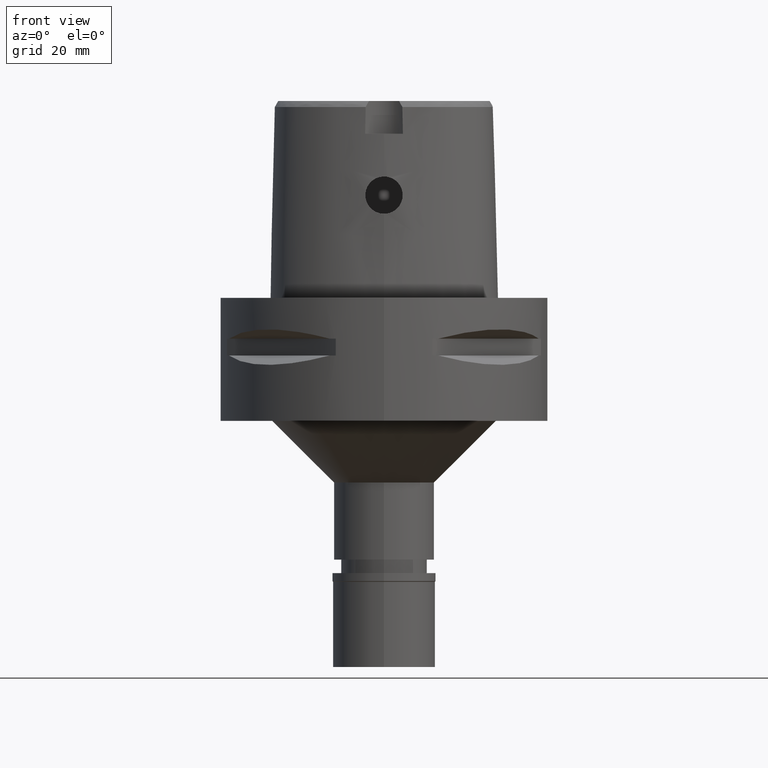
[diagram: clean part render]
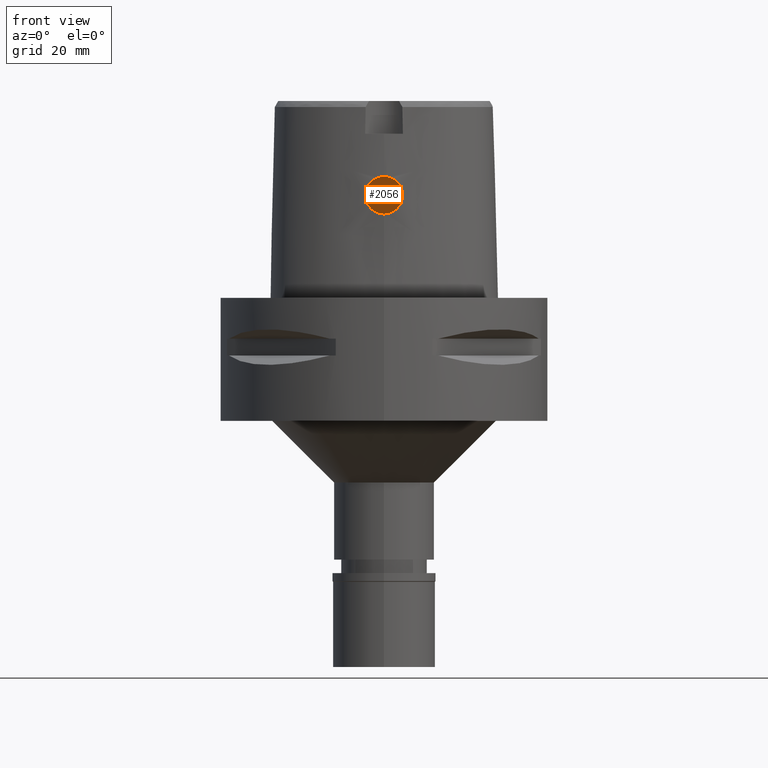
[diagram: same view with one face highlighted and labeled with its STEP entity id]
A machine part, front view. The second image highlights one B-rep face of the part: STEP entity #2056.
In plain terms, the highlighted planar face has unit normal (0, 1, 0).
Its self-contained STEP definition (entity closure, byte-faithful):
#34 = CIRCLE ( 'NONE', #2880, 4.549999999999998934 ) ;
#165 = DIRECTION ( 'NONE',  ( 0.0000000000000000000, 0.0000000000000000000, 1.000000000000000000 ) ) ;
#243 = CARTESIAN_POINT ( 'NONE',  ( 0.0000000000000000000, 22.00000000000000000, 20.44999999999999929 ) ) ;
#340 = AXIS2_PLACEMENT_3D ( 'NONE', #3437, #4637, #1138 ) ;
#543 = CARTESIAN_POINT ( 'NONE',  ( 0.0000000000000000000, 22.00000000000000000, 25.00000000000000000 ) ) ;
#621 = EDGE_CURVE ( 'NONE', #1339, #3505, #34, .T. ) ;
#689 = ORIENTED_EDGE ( 'NONE', *, *, #3053, .F. ) ;
#1136 = DIRECTION ( 'NONE',  ( 0.0000000000000000000, 1.000000000000000000, 0.0000000000000000000 ) ) ;
#1138 = DIRECTION ( 'NONE',  ( 1.000000000000000000, 0.0000000000000000000, 0.0000000000000000000 ) ) ;
#1339 = VERTEX_POINT ( 'NONE', #2730 ) ;
#1884 = PLANE ( 'NONE',  #340 ) ;
#1908 = CARTESIAN_POINT ( 'NONE',  ( 0.0000000000000000000, 22.00000000000000000, 25.00000000000000000 ) ) ;
#2056 = ADVANCED_FACE ( 'NONE', ( #2641 ), #1884, .F. ) ;
#2641 = FACE_OUTER_BOUND ( 'NONE', #4634, .T. ) ;
#2730 = CARTESIAN_POINT ( 'NONE',  ( 0.0000000000000000000, 22.00000000000000000, 29.55000000000000071 ) ) ;
#2880 = AXIS2_PLACEMENT_3D ( 'NONE', #543, #3653, #165 ) ;
#3053 = EDGE_CURVE ( 'NONE', #3505, #1339, #4451, .T. ) ;
#3437 = CARTESIAN_POINT ( 'NONE',  ( 0.0000000000000000000, 22.00000000000000000, 0.0000000000000000000 ) ) ;
#3459 = DIRECTION ( 'NONE',  ( 0.0000000000000000000, 0.0000000000000000000, -1.000000000000000000 ) ) ;
#3505 = VERTEX_POINT ( 'NONE', #243 ) ;
#3653 = DIRECTION ( 'NONE',  ( 0.0000000000000000000, 1.000000000000000000, 0.0000000000000000000 ) ) ;
#4386 = ORIENTED_EDGE ( 'NONE', *, *, #621, .F. ) ;
#4451 = CIRCLE ( 'NONE', #4954, 4.549999999999998934 ) ;
#4634 = EDGE_LOOP ( 'NONE', ( #4386, #689 ) ) ;
#4637 = DIRECTION ( 'NONE',  ( -0.0000000000000000000, 1.000000000000000000, 0.0000000000000000000 ) ) ;
#4954 = AXIS2_PLACEMENT_3D ( 'NONE', #1908, #1136, #3459 ) ;